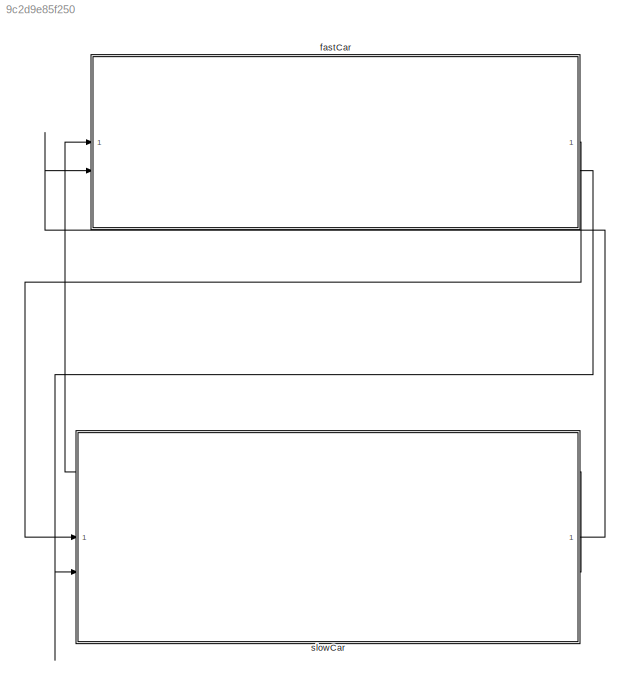
MODEL slx_9c2d9e85f250
KIND model
CONFIG AbsTol = auto
CONFIG EnableMultiTasking = off
CONFIG FixedStep = auto
CONFIG MaxStep = auto
CONFIG MinStep = auto
CONFIG RelTol = 1e-3
CONFIG SampleTimeConstraint = Unconstrained
CONFIG SolverName = VariableStepAuto
CONFIG StartTime = 0.0
CONFIG StopTime = 10.0
BLOCK [ModelReference] fastCar
  ModelNameDialog = RoboCarModel.slx
  ModelReferenceVersion = 1.52
  PortSchema = {"entries":[{"content":{"sides":[{"content":{"connectorIds":["In1","In2"]},"type":"ConnectorPlacement.EquallySpacedRectSide","uuid":"95733cf0-032d-453a-9995-7e8d3e1a24c3"},{"content":{"connectorIds":["Out2","Out1"],"side":"RIGHT"},"type":"ConnectorPlacement.EquallySpacedRectSide","uuid":"8d40af39-e74b-4bad-b693-9b5567a60d93"},{"content":{"side":"TOP"},"type":"ConnectorPlacement.EquallySpacedRectSi...<+235ch>
BLOCK [ModelReference] slowCar
  ModelNameDialog = RoboCarModel.slx
  ModelReferenceVersion = 1.52
  PortSchema = {"entries":[{"content":{"sides":[{"content":{"connectorIds":["In1","In2"]},"type":"ConnectorPlacement.EquallySpacedRectSide","uuid":"95733cf0-032d-453a-9995-7e8d3e1a24c3"},{"content":{"connectorIds":["Out2","Out1"],"side":"RIGHT"},"type":"ConnectorPlacement.EquallySpacedRectSide","uuid":"8d40af39-e74b-4bad-b693-9b5567a60d93"},{"content":{"side":"TOP"},"type":"ConnectorPlacement.EquallySpacedRectSi...<+235ch>
LINE fastCar:1 -> slowCar:1
LINE fastCar:2 -> slowCar:2
LINE slowCar:1 -> fastCar:2
LINE slowCar:2 -> fastCar:1
